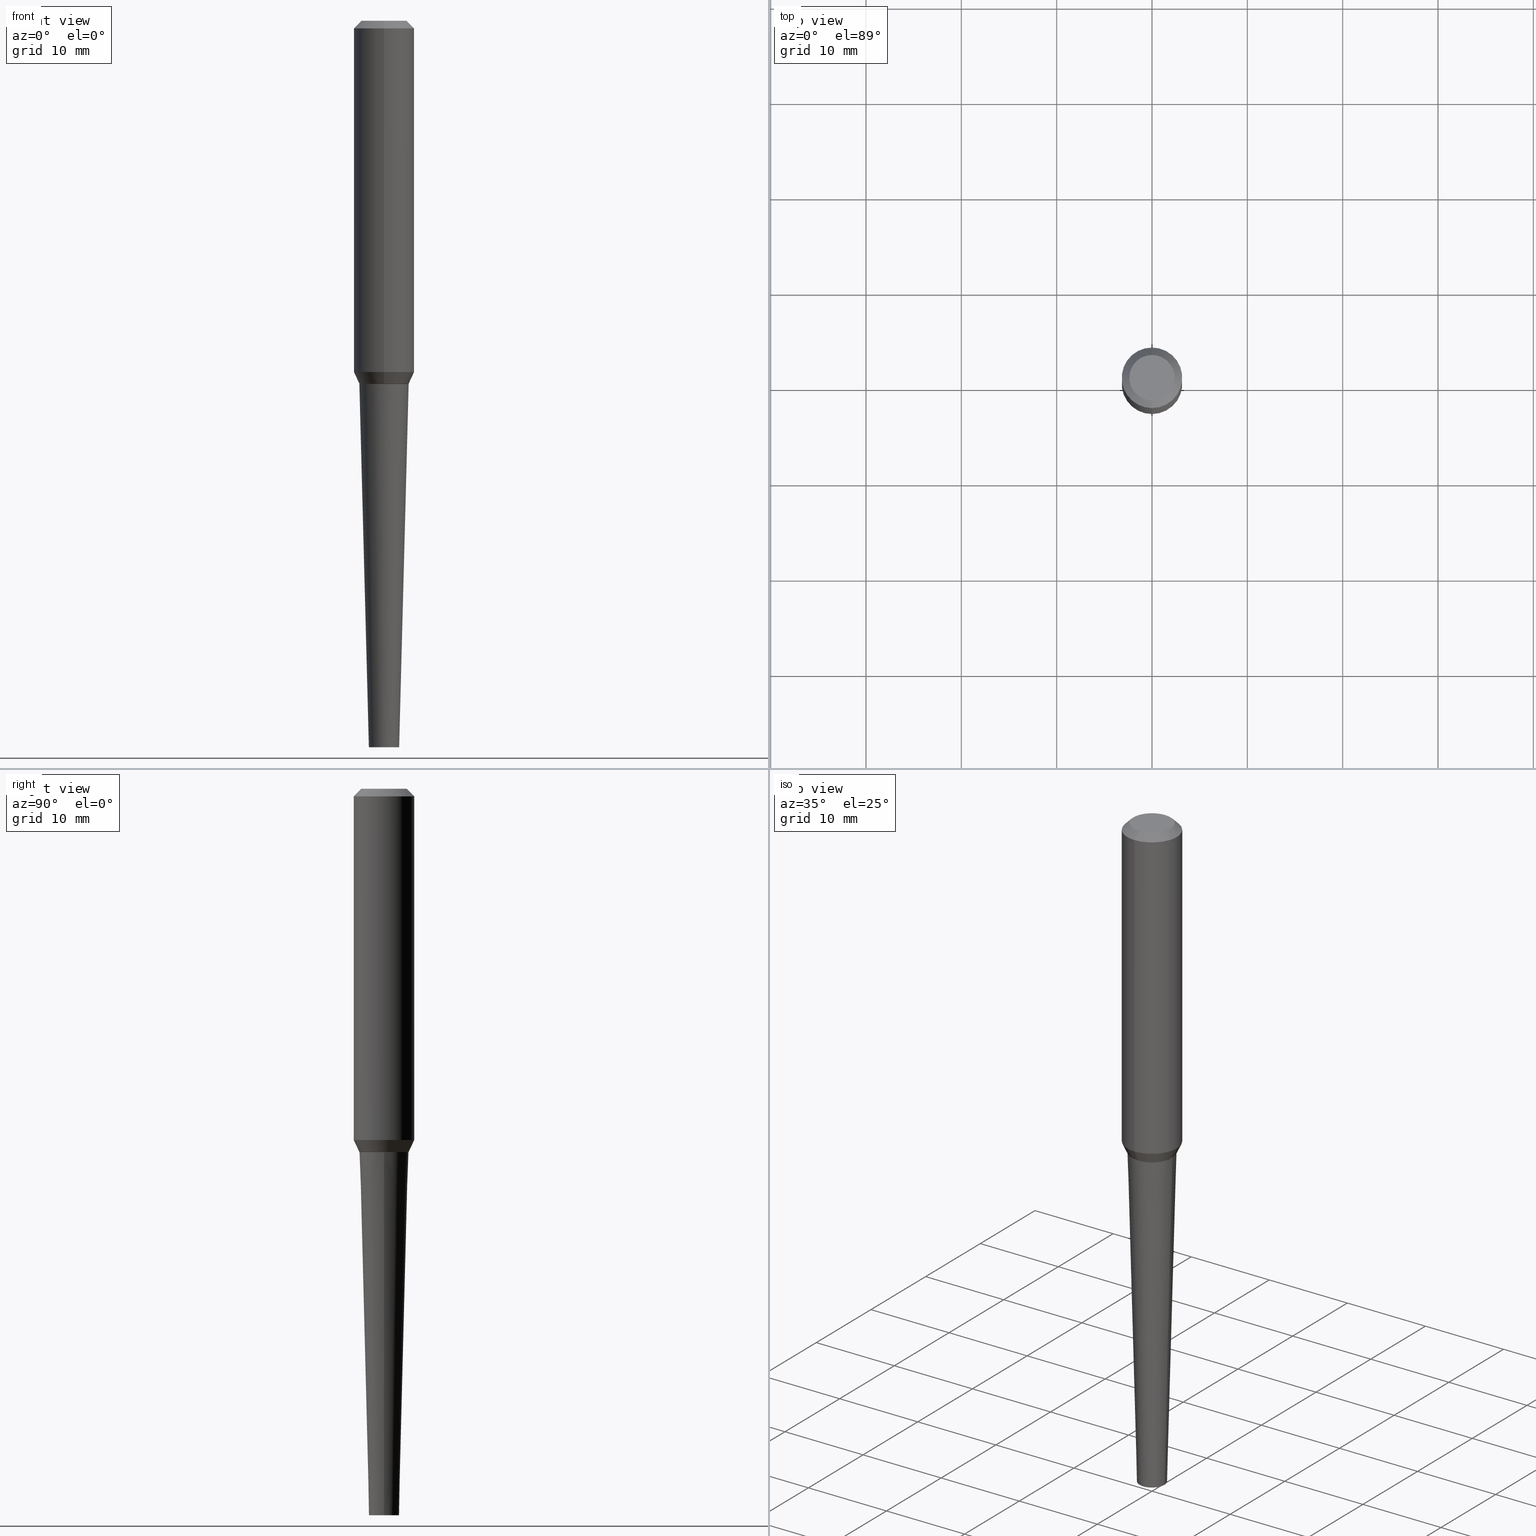
[diagram: canonical four-view strip — front | top / right | iso, engineering-drawing reading convention]
A machine part, canonical four-view strip (front | top / right | iso — engineering-drawing reading convention). The complete STEP part file that produces these views, byte-faithful:
ISO-10303-21;
HEADER;
FILE_DESCRIPTION (( 'STEP AP203' ),
    '1' );
FILE_NAME ('32346.STEP',
    '2024-03-04T15:08:03',
    ( '' ),
    ( '' ),
    'SwSTEP 2.0',
    'SolidWorks 2023',
    '' );
FILE_SCHEMA (( 'CONFIG_CONTROL_DESIGN' ));
ENDSEC;

DATA;
#1 = AXIS2_PLACEMENT_3D ( 'NONE', #379, #30, #123 ) ;
#2 = LOCAL_TIME ( 10, 8, 3.000000000000000000, #74 ) ;
#3 = ORIENTED_EDGE ( 'NONE', *, *, #201, .T. ) ;
#4 = PERSON_AND_ORGANIZATION_ROLE ( 'creator' ) ;
#5 = ORIENTED_EDGE ( 'NONE', *, *, #148, .T. ) ;
#6 = SHAPE_DEFINITION_REPRESENTATION ( #73, #109 ) ;
#7 = APPROVAL_STATUS ( 'not_yet_approved' ) ;
#8 = FACE_OUTER_BOUND ( 'NONE', #341, .T. ) ;
#9 = APPROVAL_DATE_TIME ( #290, #141 ) ;
#10 = EDGE_CURVE ( 'NONE', #268, #277, #136, .T. ) ;
#11 = DATE_TIME_ROLE ( 'creation_date' ) ;
#12 = CONICAL_SURFACE ( 'NONE', #40, 0.06249999999999988204, 0.02617993877990793666 ) ;
#13 = PLANE ( 'NONE',  #330 ) ;
#14 = PRODUCT_RELATED_PRODUCT_CATEGORY ( 'detail', '', ( #134 ) ) ;
#15 = CARTESIAN_POINT ( 'NONE',  ( 3.591089617008199864E-29, -5.341101035748905658E-15, -1.499063130645135855 ) ) ;
#16 = DIRECTION ( 'NONE',  ( -2.622229697666732842E-29, 3.238349681636345134E-15, 1.000000000000000000 ) ) ;
#17 = AXIS2_PLACEMENT_3D ( 'NONE', #297, #234, #174 ) ;
#18 = DIRECTION ( 'NONE',  ( 6.982962677686265133E-15, 1.000000000000000000, -3.244069492476299432E-15 ) ) ;
#19 = ORIENTED_EDGE ( 'NONE', *, *, #96, .F. ) ;
#20 = EDGE_LOOP ( 'NONE', ( #64, #23, #305, #182 ) ) ;
#21 =( NAMED_UNIT ( * ) SI_UNIT ( $, .STERADIAN. ) SOLID_ANGLE_UNIT ( ) );
#22 = LINE ( 'NONE', #279, #224 ) ;
#23 = ORIENTED_EDGE ( 'NONE', *, *, #327, .T. ) ;
#24 = LINE ( 'NONE', #245, #365 ) ;
#25 = LINE ( 'NONE', #350, #143 ) ;
#26 = CIRCLE ( 'NONE', #156, 0.1012788823537698613 ) ;
#27 = EDGE_CURVE ( 'NONE', #409, #81, #357, .T. ) ;
#28 = CARTESIAN_POINT ( 'NONE',  ( 7.262865985683137327E-16, 0.1022157517086284551, -1.499063130645136077 ) ) ;
#29 = CARTESIAN_POINT ( 'NONE',  ( 3.668203209277704895E-29, -5.237222008264718177E-15, -1.500000000000000222 ) ) ;
#30 = DIRECTION ( 'NONE',  ( -2.445468806185136597E-29, 3.491481338843145583E-15, 1.000000000000000000 ) ) ;
#31 = VECTOR ( 'NONE', #47, 39.37007874015748854 ) ;
#32 = DATE_AND_TIME ( #231, #2 ) ;
#33 = EDGE_LOOP ( 'NONE', ( #241, #271, #377, #114 ) ) ;
#34 = APPROVAL_STATUS ( 'not_yet_approved' ) ;
#35 = CC_DESIGN_APPROVAL ( #141, ( #162 ) ) ;
#36 = APPROVAL_PERSON_ORGANIZATION ( #392, #87, #101 ) ;
#37 = CC_DESIGN_PERSON_AND_ORGANIZATION_ASSIGNMENT ( #197, #263, ( #162 ) ) ;
#38 = LINE ( 'NONE', #112, #31 ) ;
#39 = CC_DESIGN_DATE_AND_TIME_ASSIGNMENT ( #130, #11, ( #321 ) ) ;
#40 = AXIS2_PLACEMENT_3D ( 'NONE', #223, #131, #261 ) ;
#41 = ORIENTED_EDGE ( 'NONE', *, *, #27, .F. ) ;
#42 = LINE ( 'NONE', #239, #68 ) ;
#43 = ORIENTED_EDGE ( 'NONE', *, *, #316, .F. ) ;
#44 = FACE_OUTER_BOUND ( 'NONE', #283, .T. ) ;
#45 = ORIENTED_EDGE ( 'NONE', *, *, #56, .F. ) ;
#46 = AXIS2_PLACEMENT_3D ( 'NONE', #355, #98, #394 ) ;
#47 = DIRECTION ( 'NONE',  ( -2.951127548643983149E-15, -0.4226182617406979425, 0.9063077870366507138 ) ) ;
#48 = AXIS2_PLACEMENT_3D ( 'NONE', #315, #50, #343 ) ;
#49 = ORIENTED_EDGE ( 'NONE', *, *, #220, .T. ) ;
#50 = DIRECTION ( 'NONE',  ( -2.445468806185136597E-29, 3.491481338843145583E-15, 1.000000000000000000 ) ) ;
#51 = DIRECTION ( 'NONE',  ( -6.982962677686265922E-15, -1.000000000000000000, 3.238349681636345134E-15 ) ) ;
#52 = VERTEX_POINT ( 'NONE', #295 ) ;
#53 =( NAMED_UNIT ( * ) PLANE_ANGLE_UNIT ( ) SI_UNIT ( $, .RADIAN. ) );
#54 = CARTESIAN_POINT ( 'NONE',  ( 3.593546303653357794E-29, -5.344134946325963384E-15, -1.499999999999999778 ) ) ;
#55 = VERTEX_POINT ( 'NONE', #212 ) ;
#56 = EDGE_CURVE ( 'NONE', #125, #52, #374, .T. ) ;
#57 = DIRECTION ( 'NONE',  ( -4.937700262164234076E-15, -0.7071067811864999442, 0.7071067811865948682 ) ) ;
#58 = CIRCLE ( 'NONE', #149, 0.09375000000000043021 ) ;
#59 = CONICAL_SURFACE ( 'NONE', #286, 0.1012788823537698613, 0.7853981633973845522 ) ;
#60 = ORIENTED_EDGE ( 'NONE', *, *, #276, .F. ) ;
#61 = DIRECTION ( 'NONE',  ( -6.982962677686266711E-15, -1.000000000000000000, 2.697352034476293751E-15 ) ) ;
#62 = DIRECTION ( 'NONE',  ( -2.622229697666732842E-29, 3.238349681636345134E-15, 1.000000000000000000 ) ) ;
#63 = ADVANCED_FACE ( 'NONE', ( #44 ), #275, .T. ) ;
#64 = ORIENTED_EDGE ( 'NONE', *, *, #262, .F. ) ;
#65 = DIRECTION ( 'NONE',  ( -6.982962677686265922E-15, -1.000000000000000000, 2.672629167226007659E-15 ) ) ;
#66 = COORDINATED_UNIVERSAL_TIME_OFFSET ( 5, 0, .BEHIND. ) ;
#67 = CALENDAR_DATE ( 2024, 4, 3 ) ;
#68 = VECTOR ( 'NONE', #372, 39.37007874015748143 ) ;
#69 = SECURITY_CLASSIFICATION ( '', '', #391 ) ;
#70 = AXIS2_PLACEMENT_3D ( 'NONE', #269, #170, #368 ) ;
#71 = PERSON_AND_ORGANIZATION_ROLE ( 'classification_officer' ) ;
#72 = FACE_OUTER_BOUND ( 'NONE', #206, .T. ) ;
#73 = PRODUCT_DEFINITION_SHAPE ( 'NONE', 'NONE',  #321 ) ;
#74 = COORDINATED_UNIVERSAL_TIME_OFFSET ( 5, 0, .BEHIND. ) ;
#75 = EDGE_CURVE ( 'NONE', #209, #385, #58, .T. ) ;
#76 = DIRECTION ( 'NONE',  ( 2.622229697666732842E-29, -3.238349681636345134E-15, -1.000000000000000000 ) ) ;
#77 = FACE_OUTER_BOUND ( 'NONE', #92, .T. ) ;
#78 = CIRCLE ( 'NONE', #99, 0.1012788823537698613 ) ;
#79 = CARTESIAN_POINT ( 'NONE',  ( 3.584013887502854818E-29, -5.357785908804918113E-15, -1.499999999999999778 ) ) ;
#80 = DIRECTION ( 'NONE',  ( -2.622229697666732842E-29, 3.238349681636345134E-15, 1.000000000000000000 ) ) ;
#81 = VERTEX_POINT ( 'NONE', #267 ) ;
#82 = CC_DESIGN_PERSON_AND_ORGANIZATION_ASSIGNMENT ( #356, #71, ( #69 ) ) ;
#83 = CARTESIAN_POINT ( 'NONE',  ( 7.336406418555409790E-29, -1.047444401652943635E-14, -3.000000000000000444 ) ) ;
#84 = DIRECTION ( 'NONE',  ( 1.000000000000000000, -6.982962677686263555E-15, 0.000000000000000000 ) ) ;
#85 = ORIENTED_EDGE ( 'NONE', *, *, #316, .T. ) ;
#86 = AXIS2_PLACEMENT_3D ( 'NONE', #308, #248, #152 ) ;
#87 = APPROVAL ( #34, 'UNSPECIFIED' ) ;
#88 = EDGE_LOOP ( 'NONE', ( #3, #142, #60, #172 ) ) ;
#89 = CARTESIAN_POINT ( 'NONE',  ( 3.593546303653357794E-29, -5.344134946325963384E-15, -1.499999999999999778 ) ) ;
#90 = LOCAL_TIME ( 10, 8, 3.000000000000000000, #354 ) ;
#91 = EDGE_CURVE ( 'NONE', #119, #345, #128, .T. ) ;
#92 = EDGE_LOOP ( 'NONE', ( #19, #120, #403, #147 ) ) ;
#93 = PERSON ( 'UNSPECIFIED', 'UNSPECIFIED', 'UNSPECIFIED', ('UNSPECIFIED'), ('UNSPECIFIED'), ('UNSPECIFIED') ) ;
#94 = AXIS2_PLACEMENT_3D ( 'NONE', #193, #95, #65 ) ;
#95 = DIRECTION ( 'NONE',  ( -2.622229697666732842E-29, 3.238349681636345134E-15, 1.000000000000000000 ) ) ;
#96 = EDGE_CURVE ( 'NONE', #385, #209, #184, .T. ) ;
#97 = CALENDAR_DATE ( 2024, 4, 3 ) ;
#98 = DIRECTION ( 'NONE',  ( 2.622229697666732282E-29, -3.238349681636345134E-15, -1.000000000000000000 ) ) ;
#99 = AXIS2_PLACEMENT_3D ( 'NONE', #54, #218, #416 ) ;
#100 = CC_DESIGN_SECURITY_CLASSIFICATION ( #69, ( #162 ) ) ;
#101 = APPROVAL_ROLE ( '' ) ;
#102 = CARTESIAN_POINT ( 'NONE',  ( -0.1017788823537697646, -4.514039553162188741E-15, -1.500000000000000222 ) ) ;
#103 = CARTESIAN_POINT ( 'NONE',  ( -3.397982428467408395E-30, -4.866104238714468673E-16, 1.912385453283800096E-17 ) ) ;
#104 = ORIENTED_EDGE ( 'NONE', *, *, #387, .T. ) ;
#105 = FACE_OUTER_BOUND ( 'NONE', #33, .T. ) ;
#106 = DIRECTION ( 'NONE',  ( -6.982962677686265922E-15, -1.000000000000000000, 3.238349681636345134E-15 ) ) ;
#107 = ORIENTED_EDGE ( 'NONE', *, *, #415, .T. ) ;
#108 = ORGANIZATION ( 'UNSPECIFIED', 'UNSPECIFIED', '' ) ;
#109 = ADVANCED_BREP_SHAPE_REPRESENTATION ( '32346', ( #257, #406, #235 ), #137 ) ;
#110 = ORIENTED_EDGE ( 'NONE', *, *, #254, .F. ) ;
#111 = ADVANCED_FACE ( 'NONE', ( #77 ), #250, .T. ) ;
#112 = CARTESIAN_POINT ( 'NONE',  ( -7.137687792530000804E-16, -0.1022157517086391548, -1.499063130645135411 ) ) ;
#113 = DIRECTION ( 'NONE',  ( -2.622229697666732842E-29, 3.238349681636345134E-15, 1.000000000000000000 ) ) ;
#114 = ORIENTED_EDGE ( 'NONE', *, *, #56, .T. ) ;
#115 = DIRECTION ( 'NONE',  ( -6.982962677686265133E-15, -1.000000000000000000, 2.185478394931408603E-15 ) ) ;
#116 = FACE_OUTER_BOUND ( 'NONE', #346, .T. ) ;
#117 = CC_DESIGN_PERSON_AND_ORGANIZATION_ASSIGNMENT ( #322, #4, ( #321 ) ) ;
#118 = CONICAL_SURFACE ( 'NONE', #358, 0.1250000000000004996, 0.7853981633974469467 ) ;
#119 = VERTEX_POINT ( 'NONE', #366 ) ;
#120 = ORIENTED_EDGE ( 'NONE', *, *, #367, .T. ) ;
#121 = CARTESIAN_POINT ( 'NONE',  ( 8.881784197001425873E-16, 0.1249999999999949069, -1.450202152505693176 ) ) ;
#122 = CARTESIAN_POINT ( 'NONE',  ( 3.668203209277704895E-29, -5.237222008264718177E-15, -1.500000000000000222 ) ) ;
#123 = DIRECTION ( 'NONE',  ( 1.000000000000000000, -6.982962677686276177E-15, 0.000000000000000000 ) ) ;
#124 = AXIS2_PLACEMENT_3D ( 'NONE', #83, #362, #205 ) ;
#125 = VERTEX_POINT ( 'NONE', #299 ) ;
#126 = PERSON_AND_ORGANIZATION_ROLE ( 'design_owner' ) ;
#127 = CALENDAR_DATE ( 2024, 4, 3 ) ;
#128 = CIRCLE ( 'NONE', #364, 0.1250000000000001110 ) ;
#129 = AXIS2_PLACEMENT_3D ( 'NONE', #216, #62, #115 ) ;
#130 = DATE_AND_TIME ( #97, #375 ) ;
#131 = DIRECTION ( 'NONE',  ( -2.445468806185136597E-29, 3.491481338843145583E-15, 1.000000000000000000 ) ) ;
#132 = APPROVAL_ROLE ( '' ) ;
#133 = DIMENSIONAL_EXPONENTS ( 1.000000000000000000, 0.000000000000000000, 0.000000000000000000, 0.000000000000000000, 0.000000000000000000, 0.000000000000000000, 0.000000000000000000 ) ;
#134 = PRODUCT ( '32346', '32346', '', ( #386 ) ) ;
#135 = DATE_TIME_ROLE ( 'classification_date' ) ;
#136 = CIRCLE ( 'NONE', #400, 0.1017788823537697646 ) ;
#137 =( GEOMETRIC_REPRESENTATION_CONTEXT ( 3 ) GLOBAL_UNCERTAINTY_ASSIGNED_CONTEXT ( ( #310 ) ) GLOBAL_UNIT_ASSIGNED_CONTEXT ( ( #214, #53, #21 ) ) REPRESENTATION_CONTEXT ( 'NONE', 'WORKASPACE' ) );
#138 = DIRECTION ( 'NONE',  ( -2.622229697666732842E-29, 3.238349681636345134E-15, 1.000000000000000000 ) ) ;
#139 = ORIENTED_EDGE ( 'NONE', *, *, #10, .T. ) ;
#140 = FACE_OUTER_BOUND ( 'NONE', #145, .T. ) ;
#141 = APPROVAL ( #320, 'UNSPECIFIED' ) ;
#142 = ORIENTED_EDGE ( 'NONE', *, *, #333, .T. ) ;
#143 = VECTOR ( 'NONE', #153, 39.37007874015748143 ) ;
#144 = CARTESIAN_POINT ( 'NONE',  ( 3.591089617008199864E-29, -5.341101035748905658E-15, -1.499063130645135855 ) ) ;
#145 = EDGE_LOOP ( 'NONE', ( #139, #215 ) ) ;
#146 = PLANE ( 'NONE',  #86 ) ;
#147 = ORIENTED_EDGE ( 'NONE', *, *, #189, .F. ) ;
#148 = EDGE_CURVE ( 'NONE', #345, #125, #203, .T. ) ;
#149 = AXIS2_PLACEMENT_3D ( 'NONE', #307, #273, #208 ) ;
#150 = CONICAL_SURFACE ( 'NONE', #410, 0.1012788823537698613, 0.7853981633973845522 ) ;
#151 = ORIENTED_EDGE ( 'NONE', *, *, #75, .T. ) ;
#152 = DIRECTION ( 'NONE',  ( -1.000000000000000000, 6.982962677686265922E-15, -4.876176775795935793E-29 ) ) ;
#153 = DIRECTION ( 'NONE',  ( -4.851104656540955597E-15, -0.7071067811865489050, -0.7071067811865461294 ) ) ;
#154 = EDGE_CURVE ( 'NONE', #55, #268, #42, .T. ) ;
#155 = CARTESIAN_POINT ( 'NONE',  ( 7.229581699960393775E-16, 0.1012788823537645183, -1.500000000000000222 ) ) ;
#156 = AXIS2_PLACEMENT_3D ( 'NONE', #165, #255, #229 ) ;
#157 = APPROVAL_DATE_TIME ( #32, #87 ) ;
#158 = DIRECTION ( 'NONE',  ( 4.937700262164542520E-15, 0.7071067811865442421, -0.7071067811865507924 ) ) ;
#159 = EDGE_CURVE ( 'NONE', #52, #125, #300, .T. ) ;
#160 = FACE_OUTER_BOUND ( 'NONE', #336, .T. ) ;
#161 = AXIS2_PLACEMENT_3D ( 'NONE', #363, #16, #106 ) ;
#162 = PRODUCT_DEFINITION_FORMATION_WITH_SPECIFIED_SOURCE ( 'ANY', '', #134, .NOT_KNOWN. ) ;
#163 = CARTESIAN_POINT ( 'NONE',  ( -0.06249999999999988204, -7.272197179920781633E-15, -3.000000000000000444 ) ) ;
#164 = DATE_AND_TIME ( #353, #347 ) ;
#165 = CARTESIAN_POINT ( 'NONE',  ( 3.593546303653357794E-29, -5.344134946325963384E-15, -1.499999999999999778 ) ) ;
#166 = ADVANCED_FACE ( 'NONE', ( #160 ), #202, .T. ) ;
#167 = DIRECTION ( 'NONE',  ( 2.438088387897960049E-29, -3.491481338843145188E-15, -1.000000000000000000 ) ) ;
#168 = ORIENTED_EDGE ( 'NONE', *, *, #91, .F. ) ;
#169 = ADVANCED_FACE ( 'NONE', ( #225 ), #289, .F. ) ;
#170 = DIRECTION ( 'NONE',  ( -2.622229697666732842E-29, 3.238349681636345134E-15, 1.000000000000000000 ) ) ;
#171 = CARTESIAN_POINT ( 'NONE',  ( -2.578535647946551579E-30, -5.878088514225828376E-16, -0.03125000000000007633 ) ) ;
#172 = ORIENTED_EDGE ( 'NONE', *, *, #415, .F. ) ;
#173 = DIRECTION ( 'NONE',  ( -1.000000000000000000, 6.982962677686265922E-15, -4.876176775795935793E-29 ) ) ;
#174 = DIRECTION ( 'NONE',  ( 6.982962677686265133E-15, 1.000000000000000000, -3.244069492476299432E-15 ) ) ;
#175 = AXIS2_PLACEMENT_3D ( 'NONE', #171, #369, #390 ) ;
#176 = CARTESIAN_POINT ( 'NONE',  ( -0.06249999999999988204, -1.003035480667937531E-14, -3.000000000000000444 ) ) ;
#177 = EDGE_LOOP ( 'NONE', ( #280, #319, #107, #41 ) ) ;
#178 = LENGTH_MEASURE_WITH_UNIT ( LENGTH_MEASURE( 0.02539999999999999897 ), #378 );
#179 = VERTEX_POINT ( 'NONE', #163 ) ;
#180 = DIRECTION ( 'NONE',  ( -2.622229697666732842E-29, 3.238349681636345134E-15, 1.000000000000000000 ) ) ;
#181 = DIRECTION ( 'NONE',  ( -2.445468806185136597E-29, 3.491481338843145583E-15, 1.000000000000000000 ) ) ;
#182 = ORIENTED_EDGE ( 'NONE', *, *, #361, .F. ) ;
#183 = ORIENTED_EDGE ( 'NONE', *, *, #342, .F. ) ;
#184 = CIRCLE ( 'NONE', #161, 0.09375000000000043021 ) ;
#185 = LINE ( 'NONE', #28, #318 ) ;
#186 = ADVANCED_FACE ( 'NONE', ( #8 ), #12, .T. ) ;
#187 = FACE_OUTER_BOUND ( 'NONE', #177, .T. ) ;
#188 = AXIS2_PLACEMENT_3D ( 'NONE', #238, #198, #371 ) ;
#189 = EDGE_CURVE ( 'NONE', #209, #125, #291, .T. ) ;
#190 = ORIENTED_EDGE ( 'NONE', *, *, #327, .F. ) ;
#191 = APPLICATION_PROTOCOL_DEFINITION ( 'international standard', 'config_control_design', 1994, #314 ) ;
#192 = APPROVAL_DATE_TIME ( #164, #298 ) ;
#193 = CARTESIAN_POINT ( 'NONE',  ( 3.591089617008199864E-29, -5.341101035748905658E-15, -1.499063130645135855 ) ) ;
#194 = APPROVAL_ROLE ( '' ) ;
#195 = VECTOR ( 'NONE', #296, 39.37007874015748143 ) ;
#196 = COORDINATED_UNIVERSAL_TIME_OFFSET ( 5, 0, .BEHIND. ) ;
#197 = PERSON_AND_ORGANIZATION ( #93, #108 ) ;
#198 = DIRECTION ( 'NONE',  ( -2.622229697666732842E-29, 3.238349681636345134E-15, 1.000000000000000000 ) ) ;
#199 = DIRECTION ( 'NONE',  ( -6.982962677686265922E-15, -1.000000000000000000, 3.238349681636345134E-15 ) ) ;
#200 = ORIENTED_EDGE ( 'NONE', *, *, #387, .F. ) ;
#201 = EDGE_CURVE ( 'NONE', #247, #301, #26, .T. ) ;
#202 = CONICAL_SURFACE ( 'NONE', #94, 0.1022157517086337980, 0.4363323129985839377 ) ;
#203 = LINE ( 'NONE', #332, #381 ) ;
#204 = ORIENTED_EDGE ( 'NONE', *, *, #220, .F. ) ;
#205 = DIRECTION ( 'NONE',  ( 1.000000000000000000, -6.982962677686276177E-15, 0.000000000000000000 ) ) ;
#206 = EDGE_LOOP ( 'NONE', ( #370, #5, #344, #200 ) ) ;
#207 = CARTESIAN_POINT ( 'NONE',  ( -2.578535647946551579E-30, -5.878088514225828376E-16, -0.03125000000000007633 ) ) ;
#208 = DIRECTION ( 'NONE',  ( -6.982962677686265922E-15, -1.000000000000000000, 3.238349681636345134E-15 ) ) ;
#209 = VERTEX_POINT ( 'NONE', #359 ) ;
#210 = CIRCLE ( 'NONE', #129, 0.1250000000000001110 ) ;
#211 = CARTESIAN_POINT ( 'NONE',  ( 3.593546303653357794E-29, -5.344134946325963384E-15, -1.499999999999999778 ) ) ;
#212 = CARTESIAN_POINT ( 'NONE',  ( 0.06249999999999988204, -1.091087918388482802E-14, -3.000000000000000444 ) ) ;
#213 = ORIENTED_EDGE ( 'NONE', *, *, #10, .F. ) ;
#214 =( CONVERSION_BASED_UNIT ( 'INCH', #178 ) LENGTH_UNIT ( ) NAMED_UNIT ( #133 ) );
#215 = ORIENTED_EDGE ( 'NONE', *, *, #361, .T. ) ;
#216 = CARTESIAN_POINT ( 'NONE',  ( 3.462964909073907337E-29, -5.182872102746599262E-15, -1.450202152505692732 ) ) ;
#217 = ADVANCED_FACE ( 'NONE', ( #72 ), #292, .T. ) ;
#218 = DIRECTION ( 'NONE',  ( -2.622229697666732842E-29, 3.238349681636345134E-15, 1.000000000000000000 ) ) ;
#219 = APPROVAL_PERSON_ORGANIZATION ( #260, #141, #132 ) ;
#220 = EDGE_CURVE ( 'NONE', #55, #179, #243, .T. ) ;
#221 = EDGE_LOOP ( 'NONE', ( #151, #252 ) ) ;
#222 = CARTESIAN_POINT ( 'NONE',  ( 0.000000000000000000, 0.000000000000000000, 0.000000000000000000 ) ) ;
#223 = CARTESIAN_POINT ( 'NONE',  ( 7.336406418555409790E-29, -1.047444401652943635E-14, -3.000000000000000444 ) ) ;
#224 = VECTOR ( 'NONE', #244, 39.37007874015748143 ) ;
#225 = FACE_OUTER_BOUND ( 'NONE', #221, .T. ) ;
#226 = PERSON_AND_ORGANIZATION ( #93, #108 ) ;
#227 = CC_DESIGN_PERSON_AND_ORGANIZATION_ASSIGNMENT ( #253, #360, ( #162 ) ) ;
#228 = PERSON_AND_ORGANIZATION ( #93, #108 ) ;
#229 = DIRECTION ( 'NONE',  ( -6.982962677686266711E-15, -1.000000000000000000, 2.697352034476293751E-15 ) ) ;
#230 = CIRCLE ( 'NONE', #48, 0.06249999999999988204 ) ;
#231 = CALENDAR_DATE ( 2024, 4, 3 ) ;
#232 = ADVANCED_FACE ( 'NONE', ( #140 ), #337, .F. ) ;
#233 = EDGE_LOOP ( 'NONE', ( #311, #183 ) ) ;
#234 = DIRECTION ( 'NONE',  ( 2.622229697666732842E-29, -3.238349681636345134E-15, -1.000000000000000000 ) ) ;
#235 = AXIS2_PLACEMENT_3D ( 'NONE', #222, #258, #389 ) ;
#236 = DESIGN_CONTEXT ( 'detailed design', #314, 'design' ) ;
#237 = ORIENTED_EDGE ( 'NONE', *, *, #397, .F. ) ;
#238 = CARTESIAN_POINT ( 'NONE',  ( 3.591089617008199864E-29, -5.341101035748905658E-15, -1.499063130645135855 ) ) ;
#239 = CARTESIAN_POINT ( 'NONE',  ( 0.06249999999999988204, -1.091087918388482802E-14, -3.000000000000000444 ) ) ;
#240 = ADVANCED_FACE ( 'NONE', ( #116 ), #324, .T. ) ;
#241 = ORIENTED_EDGE ( 'NONE', *, *, #367, .F. ) ;
#242 = AXIS2_PLACEMENT_3D ( 'NONE', #340, #335, #398 ) ;
#243 = CIRCLE ( 'NONE', #124, 0.06249999999999988204 ) ;
#244 = DIRECTION ( 'NONE',  ( 5.024295867787740534E-15, 0.7071067811865048292, 0.7071067811865903163 ) ) ;
#245 = CARTESIAN_POINT ( 'NONE',  ( -7.072266555141171855E-16, -0.1012788823537752042, -1.499999999999999556 ) ) ;
#246 = ADVANCED_FACE ( 'NONE', ( #105 ), #118, .T. ) ;
#247 = VERTEX_POINT ( 'NONE', #326 ) ;
#248 = DIRECTION ( 'NONE',  ( 2.438088387897960049E-29, -3.491481338843145188E-15, -1.000000000000000000 ) ) ;
#249 = AXIS2_PLACEMENT_3D ( 'NONE', #103, #404, #51 ) ;
#250 = CONICAL_SURFACE ( 'NONE', #17, 0.1250000000000004996, 0.7853981633974469467 ) ;
#251 = AXIS2_PLACEMENT_3D ( 'NONE', #334, #167, #173 ) ;
#252 = ORIENTED_EDGE ( 'NONE', *, *, #96, .T. ) ;
#253 = PERSON_AND_ORGANIZATION ( #93, #108 ) ;
#254 = EDGE_CURVE ( 'NONE', #81, #119, #38, .T. ) ;
#255 = DIRECTION ( 'NONE',  ( -2.622229697666732842E-29, 3.238349681636345134E-15, 1.000000000000000000 ) ) ;
#256 = ORIENTED_EDGE ( 'NONE', *, *, #276, .T. ) ;
#257 = MANIFOLD_SOLID_BREP ( 'Body-Move/Copy2[1]', #281 ) ;
#258 = DIRECTION ( 'NONE',  ( 0.000000000000000000, 0.000000000000000000, 1.000000000000000000 ) ) ;
#259 = CIRCLE ( 'NONE', #393, 0.1017788823537697646 ) ;
#260 = PERSON_AND_ORGANIZATION ( #93, #108 ) ;
#261 = DIRECTION ( 'NONE',  ( 1.000000000000000000, -6.982962677686276177E-15, 0.000000000000000000 ) ) ;
#262 = EDGE_CURVE ( 'NONE', #179, #277, #272, .T. ) ;
#263 = PERSON_AND_ORGANIZATION_ROLE ( 'creator' ) ;
#264 = CARTESIAN_POINT ( 'NONE',  ( 8.728703347107841277E-16, 0.1249999999999999167, -0.03125000000000047878 ) ) ;
#265 = LOCAL_TIME ( 10, 8, 3.000000000000000000, #196 ) ;
#266 = ADVANCED_FACE ( 'NONE', ( #294 ), #13, .F. ) ;
#267 = CARTESIAN_POINT ( 'NONE',  ( -7.137687792530005734E-16, -0.1022157517086391965, -1.499063130645135411 ) ) ;
#268 = VERTEX_POINT ( 'NONE', #328 ) ;
#269 = CARTESIAN_POINT ( 'NONE',  ( -3.397982428467408395E-30, -4.866104238714468673E-16, 1.912385453283800096E-17 ) ) ;
#270 = DIRECTION ( 'NONE',  ( -2.622229697666732842E-29, 3.238349681636345134E-15, 1.000000000000000000 ) ) ;
#271 = ORIENTED_EDGE ( 'NONE', *, *, #75, .F. ) ;
#272 = LINE ( 'NONE', #176, #195 ) ;
#273 = DIRECTION ( 'NONE',  ( -2.622229697666732842E-29, 3.238349681636345134E-15, 1.000000000000000000 ) ) ;
#274 = EDGE_LOOP ( 'NONE', ( #204, #190 ) ) ;
#275 = CYLINDRICAL_SURFACE ( 'NONE', #249, 0.1250000000000003053 ) ;
#276 = EDGE_CURVE ( 'NONE', #81, #409, #388, .T. ) ;
#277 = VERTEX_POINT ( 'NONE', #102 ) ;
#278 = CARTESIAN_POINT ( 'NONE',  ( -7.503669685062673783E-16, -0.09375000000000091593, 3.737714645724818020E-16 ) ) ;
#279 = CARTESIAN_POINT ( 'NONE',  ( 7.196297414237655154E-16, 0.1012788823537645183, -1.500000000000000222 ) ) ;
#280 = ORIENTED_EDGE ( 'NONE', *, *, #333, .F. ) ;
#281 = CLOSED_SHELL ( 'NONE', ( #186, #408, #282, #232 ) ) ;
#282 = ADVANCED_FACE ( 'NONE', ( #348 ), #302, .T. ) ;
#283 = EDGE_LOOP ( 'NONE', ( #331, #312, #104, #45 ) ) ;
#284 = LINE ( 'NONE', #376, #313 ) ;
#285 = FACE_OUTER_BOUND ( 'NONE', #88, .T. ) ;
#286 = AXIS2_PLACEMENT_3D ( 'NONE', #89, #384, #61 ) ;
#287 = APPLICATION_PROTOCOL_DEFINITION ( 'international standard', 'config_control_design', 1994, #411 ) ;
#288 = ADVANCED_FACE ( 'NONE', ( #285 ), #150, .T. ) ;
#289 = PLANE ( 'NONE',  #46 ) ;
#290 = DATE_AND_TIME ( #67, #90 ) ;
#291 = LINE ( 'NONE', #264, #401 ) ;
#292 = CYLINDRICAL_SURFACE ( 'NONE', #70, 0.1250000000000003053 ) ;
#293 = ADVANCED_FACE ( 'NONE', ( #187 ), #59, .T. ) ;
#294 = FACE_OUTER_BOUND ( 'NONE', #233, .T. ) ;
#295 = CARTESIAN_POINT ( 'NONE',  ( -8.575622497214472631E-16, -0.1250000000000010825, -0.03124999999999967040 ) ) ;
#296 = DIRECTION ( 'NONE',  ( -0.02617694830786614774, 3.676283300035236100E-15, 0.9996573249755573709 ) ) ;
#297 = CARTESIAN_POINT ( 'NONE',  ( -2.578535647946551579E-30, -5.878088514225828376E-16, -0.03125000000000007633 ) ) ;
#298 = APPROVAL ( #7, 'UNSPECIFIED' ) ;
#299 = CARTESIAN_POINT ( 'NONE',  ( 8.728703347107841277E-16, 0.1249999999999999167, -0.03125000000000047878 ) ) ;
#300 = CIRCLE ( 'NONE', #175, 0.1250000000000004996 ) ;
#301 = VERTEX_POINT ( 'NONE', #155 ) ;
#302 = CONICAL_SURFACE ( 'NONE', #1, 0.06249999999999988204, 0.02617993877990793666 ) ;
#303 = CC_DESIGN_APPROVAL ( #298, ( #321 ) ) ;
#304 = CC_DESIGN_APPROVAL ( #87, ( #69 ) ) ;
#305 = ORIENTED_EDGE ( 'NONE', *, *, #154, .T. ) ;
#306 = DIRECTION ( 'NONE',  ( -2.622229697666732842E-29, 3.238349681636345134E-15, 1.000000000000000000 ) ) ;
#307 = CARTESIAN_POINT ( 'NONE',  ( -3.397982428467409796E-30, -4.866104238714466701E-16, 7.017618191907306526E-17 ) ) ;
#308 = CARTESIAN_POINT ( 'NONE',  ( 4.364351673554640967E-16, 0.06249999999998940431, -3.000000000000000444 ) ) ;
#309 = DIRECTION ( 'NONE',  ( 1.000000000000000000, -6.982962677686263555E-15, 0.000000000000000000 ) ) ;
#310 = UNCERTAINTY_MEASURE_WITH_UNIT (LENGTH_MEASURE( 1.000000000000000082E-05 ), #214, 'distance_accuracy_value', 'NONE');
#311 = ORIENTED_EDGE ( 'NONE', *, *, #201, .F. ) ;
#312 = ORIENTED_EDGE ( 'NONE', *, *, #397, .T. ) ;
#313 = VECTOR ( 'NONE', #180, 39.37007874015748143 ) ;
#314 = APPLICATION_CONTEXT ( 'configuration controlled 3d designs of mechanical parts and assemblies' ) ;
#315 = CARTESIAN_POINT ( 'NONE',  ( 7.336406418555409790E-29, -1.047444401652943635E-14, -3.000000000000000444 ) ) ;
#316 = EDGE_CURVE ( 'NONE', #409, #345, #185, .T. ) ;
#317 = CLOSED_SHELL ( 'NONE', ( #240, #217, #111, #288, #293, #266, #169, #246, #63, #166 ) ) ;
#318 = VECTOR ( 'NONE', #339, 39.37007874015748143 ) ;
#319 = ORIENTED_EDGE ( 'NONE', *, *, #342, .T. ) ;
#320 = APPROVAL_STATUS ( 'not_yet_approved' ) ;
#321 = PRODUCT_DEFINITION ( 'UNKNOWN', '', #162, #236 ) ;
#322 = PERSON_AND_ORGANIZATION ( #93, #108 ) ;
#323 = COORDINATED_UNIVERSAL_TIME_OFFSET ( 5, 0, .BEHIND. ) ;
#324 = CONICAL_SURFACE ( 'NONE', #188, 0.1022157517086337980, 0.4363323129985839377 ) ;
#325 = DATE_AND_TIME ( #127, #265 ) ;
#326 = CARTESIAN_POINT ( 'NONE',  ( -7.072266555141171855E-16, -0.1012788823537752042, -1.499999999999999556 ) ) ;
#327 = EDGE_CURVE ( 'NONE', #179, #55, #230, .T. ) ;
#328 = CARTESIAN_POINT ( 'NONE',  ( 0.1017788823537697646, -5.947940145117713967E-15, -1.500000000000000222 ) ) ;
#329 = AXIS2_PLACEMENT_3D ( 'NONE', #144, #270, #373 ) ;
#330 = AXIS2_PLACEMENT_3D ( 'NONE', #79, #399, #199 ) ;
#331 = ORIENTED_EDGE ( 'NONE', *, *, #148, .F. ) ;
#332 = CARTESIAN_POINT ( 'NONE',  ( 8.881784197001238518E-16, 0.1249999999999998335, -3.856698556717061268E-16 ) ) ;
#333 = EDGE_CURVE ( 'NONE', #301, #409, #22, .T. ) ;
#334 = CARTESIAN_POINT ( 'NONE',  ( 7.107181368530321762E-16, 0.1017788823537645188, -1.500000000000000444 ) ) ;
#335 = DIRECTION ( 'NONE',  ( -2.622229697666732842E-29, 3.238349681636345134E-15, 1.000000000000000000 ) ) ;
#336 = EDGE_LOOP ( 'NONE', ( #43, #405, #380, #237 ) ) ;
#337 = PLANE ( 'NONE',  #251 ) ;
#338 = CARTESIAN_POINT ( 'NONE',  ( 7.262865985683134369E-16, 0.1022157517086284134, -1.499063130645136077 ) ) ;
#339 = DIRECTION ( 'NONE',  ( 3.002883358794132806E-15, 0.4226182617407037712, 0.9063077870366479383 ) ) ;
#340 = CARTESIAN_POINT ( 'NONE',  ( -2.578535647946551579E-30, -5.878088514225828376E-16, -0.03125000000000007633 ) ) ;
#341 = EDGE_LOOP ( 'NONE', ( #49, #412, #213, #351 ) ) ;
#342 = EDGE_CURVE ( 'NONE', #301, #247, #78, .T. ) ;
#343 = DIRECTION ( 'NONE',  ( 1.000000000000000000, -6.982962677686276177E-15, 0.000000000000000000 ) ) ;
#344 = ORIENTED_EDGE ( 'NONE', *, *, #159, .F. ) ;
#345 = VERTEX_POINT ( 'NONE', #121 ) ;
#346 = EDGE_LOOP ( 'NONE', ( #256, #85, #168, #110 ) ) ;
#347 = LOCAL_TIME ( 10, 8, 3.000000000000000000, #66 ) ;
#348 = FACE_OUTER_BOUND ( 'NONE', #20, .T. ) ;
#349 = CC_DESIGN_DATE_AND_TIME_ASSIGNMENT ( #325, #135, ( #69 ) ) ;
#350 = CARTESIAN_POINT ( 'NONE',  ( -8.575622497214472631E-16, -0.1250000000000010825, -0.03124999999999967040 ) ) ;
#351 = ORIENTED_EDGE ( 'NONE', *, *, #154, .F. ) ;
#352 = AXIS2_PLACEMENT_3D ( 'NONE', #15, #138, #395 ) ;
#353 = CALENDAR_DATE ( 2024, 4, 3 ) ;
#354 = COORDINATED_UNIVERSAL_TIME_OFFSET ( 5, 0, .BEHIND. ) ;
#355 = CARTESIAN_POINT ( 'NONE',  ( 6.546527510330871097E-16, 0.09374999999999995837, -2.589452644274532468E-16 ) ) ;
#356 = PERSON_AND_ORGANIZATION ( #93, #108 ) ;
#357 = CIRCLE ( 'NONE', #329, 0.1022157517086338258 ) ;
#358 = AXIS2_PLACEMENT_3D ( 'NONE', #207, #76, #18 ) ;
#359 = CARTESIAN_POINT ( 'NONE',  ( 7.637615428719355201E-16, 0.09374999999999995837, -2.334191007343356962E-16 ) ) ;
#360 = PERSON_AND_ORGANIZATION_ROLE ( 'design_supplier' ) ;
#361 = EDGE_CURVE ( 'NONE', #277, #268, #259, .T. ) ;
#362 = DIRECTION ( 'NONE',  ( -2.445468806185136597E-29, 3.491481338843145583E-15, 1.000000000000000000 ) ) ;
#363 = CARTESIAN_POINT ( 'NONE',  ( -3.397982428467409796E-30, -4.866104238714466701E-16, 7.017618191907306526E-17 ) ) ;
#364 = AXIS2_PLACEMENT_3D ( 'NONE', #402, #80, #396 ) ;
#365 = VECTOR ( 'NONE', #57, 39.37007874015748854 ) ;
#366 = CARTESIAN_POINT ( 'NONE',  ( -8.728703347107494178E-16, -0.1250000000000053013, -1.450202152505692510 ) ) ;
#367 = EDGE_CURVE ( 'NONE', #385, #52, #25, .T. ) ;
#368 = DIRECTION ( 'NONE',  ( -6.982962677686265922E-15, -1.000000000000000000, 3.238349681636345134E-15 ) ) ;
#369 = DIRECTION ( 'NONE',  ( -2.622229697666732842E-29, 3.238349681636345134E-15, 1.000000000000000000 ) ) ;
#370 = ORIENTED_EDGE ( 'NONE', *, *, #91, .T. ) ;
#371 = DIRECTION ( 'NONE',  ( -6.982962677686265922E-15, -1.000000000000000000, 2.672629167226007659E-15 ) ) ;
#372 = DIRECTION ( 'NONE',  ( 0.02617694830786614774, 3.307492242340464735E-15, 0.9996573249755573709 ) ) ;
#373 = DIRECTION ( 'NONE',  ( -6.982962677686265922E-15, -1.000000000000000000, 2.672629167226006870E-15 ) ) ;
#374 = CIRCLE ( 'NONE', #242, 0.1250000000000004996 ) ;
#375 = LOCAL_TIME ( 10, 8, 3.000000000000000000, #323 ) ;
#376 = CARTESIAN_POINT ( 'NONE',  ( -8.728703347107887622E-16, -0.1250000000000007772, 4.239175647373821287E-16 ) ) ;
#377 = ORIENTED_EDGE ( 'NONE', *, *, #189, .T. ) ;
#378 =( LENGTH_UNIT ( ) NAMED_UNIT ( * ) SI_UNIT ( $, .METRE. ) );
#379 = CARTESIAN_POINT ( 'NONE',  ( 7.336406418555409790E-29, -1.047444401652943635E-14, -3.000000000000000444 ) ) ;
#380 = ORIENTED_EDGE ( 'NONE', *, *, #254, .T. ) ;
#381 = VECTOR ( 'NONE', #113, 39.37007874015748143 ) ;
#382 = CC_DESIGN_PERSON_AND_ORGANIZATION_ASSIGNMENT ( #228, #126, ( #134 ) ) ;
#383 = APPROVAL_PERSON_ORGANIZATION ( #226, #298, #194 ) ;
#384 = DIRECTION ( 'NONE',  ( -2.622229697666732842E-29, 3.238349681636345134E-15, 1.000000000000000000 ) ) ;
#385 = VERTEX_POINT ( 'NONE', #278 ) ;
#386 = MECHANICAL_CONTEXT ( 'NONE', #411, 'mechanical' ) ;
#387 = EDGE_CURVE ( 'NONE', #119, #52, #284, .T. ) ;
#388 = CIRCLE ( 'NONE', #352, 0.1022157517086338258 ) ;
#389 = DIRECTION ( 'NONE',  ( 1.000000000000000000, 0.000000000000000000, 0.000000000000000000 ) ) ;
#390 = DIRECTION ( 'NONE',  ( -6.982962677686266711E-15, -1.000000000000000000, 3.244069492476299432E-15 ) ) ;
#391 = SECURITY_CLASSIFICATION_LEVEL ( 'unclassified' ) ;
#392 = PERSON_AND_ORGANIZATION ( #93, #108 ) ;
#393 = AXIS2_PLACEMENT_3D ( 'NONE', #29, #181, #309 ) ;
#394 = DIRECTION ( 'NONE',  ( 6.982962677686265922E-15, 1.000000000000000000, -3.238349681636345134E-15 ) ) ;
#395 = DIRECTION ( 'NONE',  ( -6.982962677686265922E-15, -1.000000000000000000, 2.672629167226006870E-15 ) ) ;
#396 = DIRECTION ( 'NONE',  ( -6.982962677686265133E-15, -1.000000000000000000, 2.185478394931408603E-15 ) ) ;
#397 = EDGE_CURVE ( 'NONE', #345, #119, #210, .T. ) ;
#398 = DIRECTION ( 'NONE',  ( -6.982962677686266711E-15, -1.000000000000000000, 3.244069492476299432E-15 ) ) ;
#399 = DIRECTION ( 'NONE',  ( -2.622229697666732282E-29, 3.238349681636345134E-15, 1.000000000000000000 ) ) ;
#400 = AXIS2_PLACEMENT_3D ( 'NONE', #122, #407, #84 ) ;
#401 = VECTOR ( 'NONE', #158, 39.37007874015748143 ) ;
#402 = CARTESIAN_POINT ( 'NONE',  ( 3.462964909073907337E-29, -5.182872102746599262E-15, -1.450202152505692732 ) ) ;
#403 = ORIENTED_EDGE ( 'NONE', *, *, #159, .T. ) ;
#404 = DIRECTION ( 'NONE',  ( -2.622229697666732842E-29, 3.238349681636345134E-15, 1.000000000000000000 ) ) ;
#405 = ORIENTED_EDGE ( 'NONE', *, *, #27, .T. ) ;
#406 = MANIFOLD_SOLID_BREP ( 'Body-Move/Copy2[2]', #317 ) ;
#407 = DIRECTION ( 'NONE',  ( -2.445468806185136597E-29, 3.491481338843145583E-15, 1.000000000000000000 ) ) ;
#408 = ADVANCED_FACE ( 'NONE', ( #413 ), #146, .T. ) ;
#409 = VERTEX_POINT ( 'NONE', #338 ) ;
#410 = AXIS2_PLACEMENT_3D ( 'NONE', #211, #306, #414 ) ;
#411 = APPLICATION_CONTEXT ( 'configuration controlled 3d designs of mechanical parts and assemblies' ) ;
#412 = ORIENTED_EDGE ( 'NONE', *, *, #262, .T. ) ;
#413 = FACE_OUTER_BOUND ( 'NONE', #274, .T. ) ;
#414 = DIRECTION ( 'NONE',  ( -6.982962677686266711E-15, -1.000000000000000000, 2.697352034476293751E-15 ) ) ;
#415 = EDGE_CURVE ( 'NONE', #247, #81, #24, .T. ) ;
#416 = DIRECTION ( 'NONE',  ( -6.982962677686266711E-15, -1.000000000000000000, 2.697352034476293751E-15 ) ) ;
ENDSEC;
END-ISO-10303-21;
